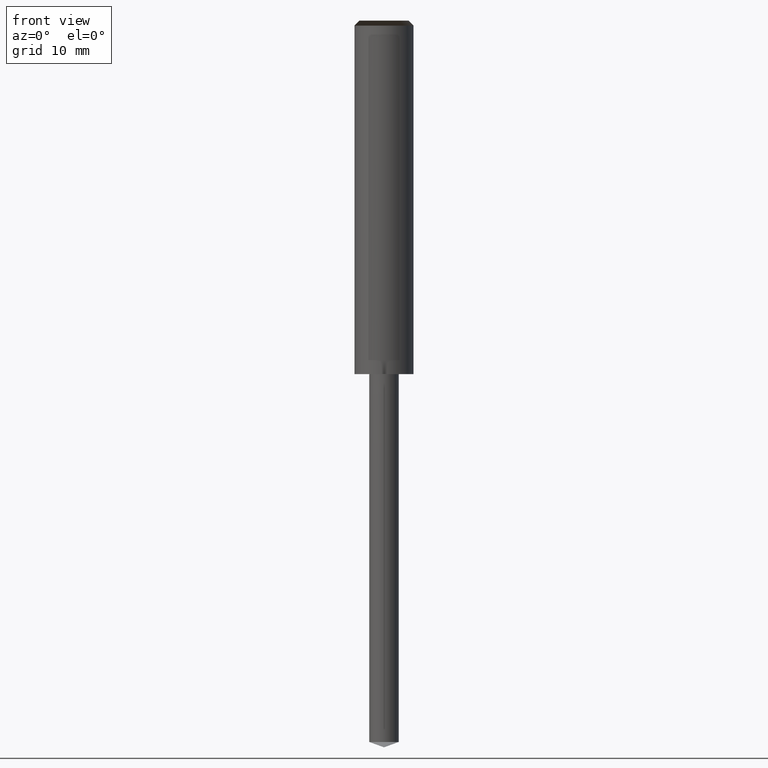
[diagram: clean part render]
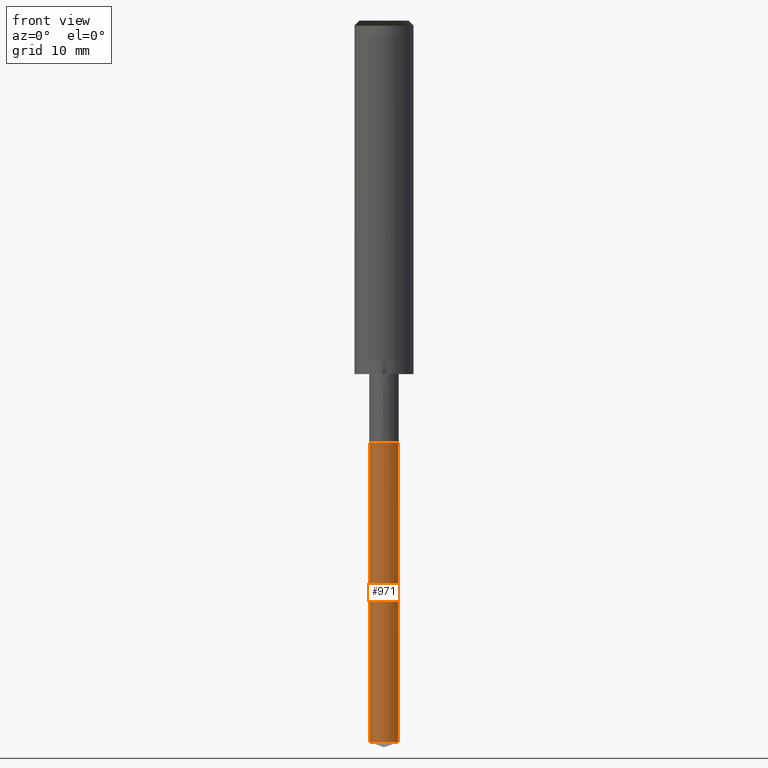
[diagram: same view with one face highlighted and labeled with its STEP entity id]
A machine part, front view. The second image highlights one B-rep face of the part: STEP entity #971.
In plain terms, the highlighted face is a freeform B-spline surface patch.
Its self-contained STEP definition (entity closure, byte-faithful):
#821=CARTESIAN_POINT('',(1.5,0.0,-37.454044648601));
#825=CARTESIAN_POINT('',(-1.5,0.0,-37.454044648601));
#826=CARTESIAN_POINT('',(1.5,0.0,-7.0));
#830=CARTESIAN_POINT('',(-1.5,0.0,-7.0));
#832=CARTESIAN_POINT('',(-1.5,-1.5,-37.454044648601));
#833=CARTESIAN_POINT('',(0.0,-1.5,-37.454044648601));
#834=CARTESIAN_POINT('',(1.5,-1.5,-37.454044648601));
#835=CARTESIAN_POINT('',(-1.5,-1.5,-7.0));
#836=CARTESIAN_POINT('',(0.0,-1.5,-7.0));
#837=CARTESIAN_POINT('',(1.5,-1.5,-7.0));
#952=(
BOUNDED_SURFACE()
B_SPLINE_SURFACE(1,2,(
(#825,#832,#833,#834,#821),
(#830,#835,#836,#837,#826)
), .UNSPECIFIED.,.F.,.F.,.F.)
B_SPLINE_SURFACE_WITH_KNOTS((2,2),(3,2,3),(
0.0,1.0),(
0.0,0.5,1.0), .UNSPECIFIED.)
GEOMETRIC_REPRESENTATION_ITEM()
RATIONAL_B_SPLINE_SURFACE(((1.0,0.707106781187,1.0,0.707106781187,1.0),
(1.0,0.707106781187,1.0,0.707106781187,1.0)
))
REPRESENTATION_ITEM('')
SURFACE()
);
#953=(
BOUNDED_CURVE()
B_SPLINE_CURVE(2,(#821,#834,#833,#832,#825),.UNSPECIFIED.,.F.,.F.)
B_SPLINE_CURVE_WITH_KNOTS((3,2,3),
(0.0,0.5,1.0),.UNSPECIFIED.)
CURVE()
GEOMETRIC_REPRESENTATION_ITEM()
RATIONAL_B_SPLINE_CURVE((1.0,0.707106781187,1.0,0.707106781187,1.0))
REPRESENTATION_ITEM('')
);
#954=(
BOUNDED_CURVE()
B_SPLINE_CURVE(1,(#825,#830),.UNSPECIFIED.,.F.,.F.)
B_SPLINE_CURVE_WITH_KNOTS((2,2),
(0.0,1.0),.UNSPECIFIED.)
CURVE()
GEOMETRIC_REPRESENTATION_ITEM()
RATIONAL_B_SPLINE_CURVE((1.0,1.0))
REPRESENTATION_ITEM('')
);
#955=(
BOUNDED_CURVE()
B_SPLINE_CURVE(2,(#830,#835,#836,#837,#826),.UNSPECIFIED.,.F.,.F.)
B_SPLINE_CURVE_WITH_KNOTS((3,2,3),
(0.0,0.5,1.0),.UNSPECIFIED.)
CURVE()
GEOMETRIC_REPRESENTATION_ITEM()
RATIONAL_B_SPLINE_CURVE((1.0,0.707106781187,1.0,0.707106781187,1.0))
REPRESENTATION_ITEM('')
);
#956=(
BOUNDED_CURVE()
B_SPLINE_CURVE(1,(#826,#821),.UNSPECIFIED.,.F.,.F.)
B_SPLINE_CURVE_WITH_KNOTS((2,2),
(0.0,1.0),.UNSPECIFIED.)
CURVE()
GEOMETRIC_REPRESENTATION_ITEM()
RATIONAL_B_SPLINE_CURVE((1.0,1.0))
REPRESENTATION_ITEM('')
);
#957=VERTEX_POINT('',#821);
#958=VERTEX_POINT('',#825);
#959=VERTEX_POINT('',#826);
#960=VERTEX_POINT('',#830);
#961=EDGE_CURVE('',#957,#958,#953,.T.);
#962=EDGE_CURVE('',#958,#960,#954,.T.);
#963=EDGE_CURVE('',#960,#959,#955,.T.);
#964=EDGE_CURVE('',#959,#957,#956,.T.);
#965=ORIENTED_EDGE('',*,*,#961,.T.);
#966=ORIENTED_EDGE('',*,*,#962,.T.);
#967=ORIENTED_EDGE('',*,*,#963,.T.);
#968=ORIENTED_EDGE('',*,*,#964,.T.);
#969=EDGE_LOOP('',(#965,#966,#967,#968));
#970=FACE_OUTER_BOUND('',#969,.T.);
#971=ADVANCED_FACE('',(#970),#952,.T.);